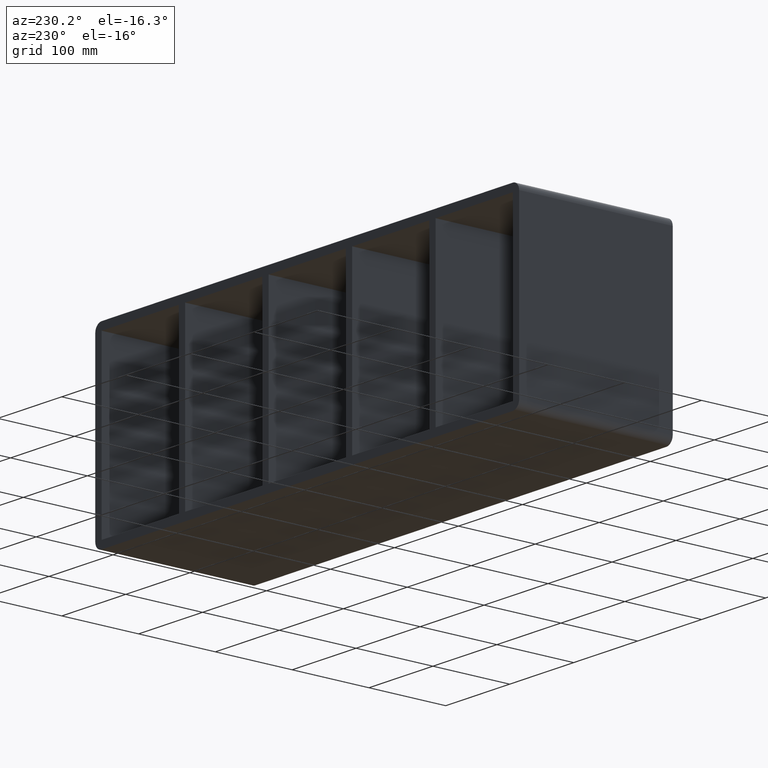
[diagram: clean part render]
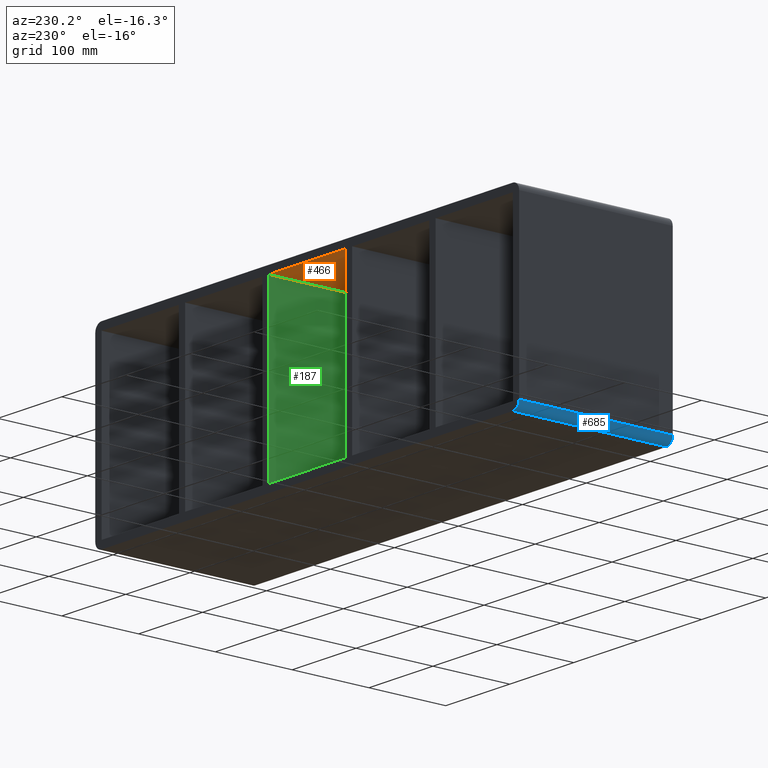
[diagram: same view with three faces highlighted in distinct colors, each labeled with its STEP entity id]
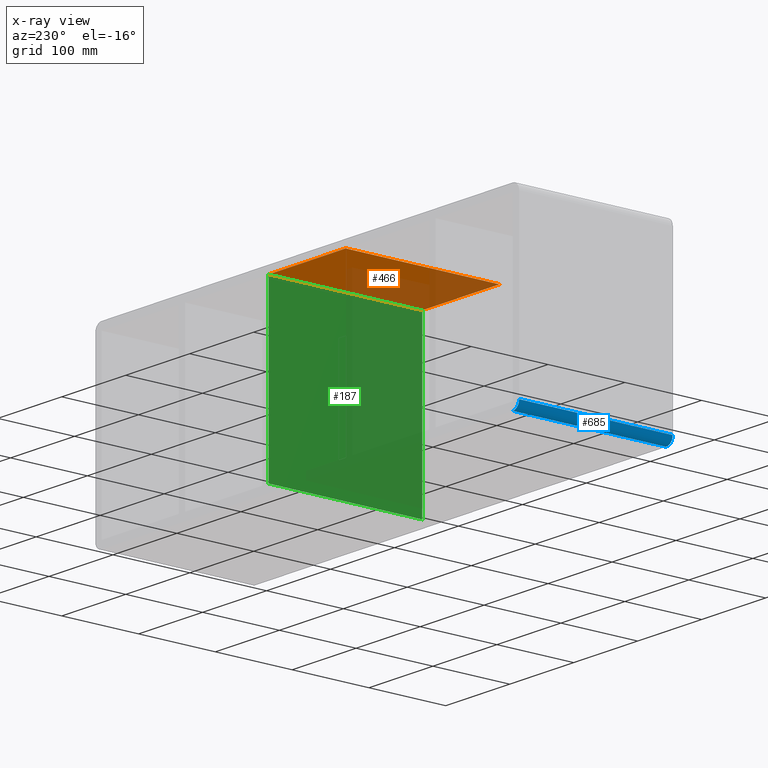
[diagram: x-ray of the same camera — body ghosted, the three highlighted faces saturated]
A machine part, auxiliary view with three faces highlighted in distinct colors.
The next image is the same camera in x-ray (body ghosted, the three faces saturated) — at least one of them is partly hidden behind the body in this view.
Their STEP definitions:

[orange] entity #466 — the highlighted planar face has unit normal (0, 0, 1).
#155=CARTESIAN_POINT('',(60.249999999998742,-3.0,109.00000000000004));
#156=VERTEX_POINT('',#155);
#163=CARTESIAN_POINT('',(60.249999999998742,197.0,109.00000000000004));
#164=VERTEX_POINT('',#163);
#165=CARTESIAN_POINT('',(60.249999999998764,196.99999999999997,109.00000000000003));
#166=DIRECTION('',(0.0,-1.0,0.0));
#167=VECTOR('',#166,199.99999999999997);
#168=LINE('',#165,#167);
#169=EDGE_CURVE('',#164,#156,#168,.T.);
#273=CARTESIAN_POINT('',(-60.250000000007269,-3.0,109.00000000000004));
#274=VERTEX_POINT('',#273);
#291=CARTESIAN_POINT('',(-60.250000000007269,197.0,109.00000000000004));
#292=VERTEX_POINT('',#291);
#299=CARTESIAN_POINT('',(-60.25000000000729,-3.0,109.00000000000003));
#300=DIRECTION('',(0.0,1.0,0.0));
#301=VECTOR('',#300,199.99999999999997);
#302=LINE('',#299,#301);
#303=EDGE_CURVE('',#274,#292,#302,.T.);
#445=CARTESIAN_POINT('',(-321.25,0.0,109.00000000000003));
#446=DIRECTION('',(0.0,0.0,1.0));
#447=DIRECTION('',(1.0,0.0,0.0));
#448=AXIS2_PLACEMENT_3D('',#445,#446,#447);
#449=PLANE('',#448);
#450=ORIENTED_EDGE('',*,*,#169,.T.);
#451=CARTESIAN_POINT('',(-60.250000000007276,-3.0,109.00000000000003));
#452=DIRECTION('',(1.0,0.0,0.0));
#453=VECTOR('',#452,120.50000000000603);
#454=LINE('',#451,#453);
#455=EDGE_CURVE('',#274,#156,#454,.T.);
#456=ORIENTED_EDGE('',*,*,#455,.F.);
#457=ORIENTED_EDGE('',*,*,#303,.T.);
#458=CARTESIAN_POINT('',(60.249999999998749,197.0,109.00000000000003));
#459=DIRECTION('',(-1.0,0.0,0.0));
#460=VECTOR('',#459,120.50000000000603);
#461=LINE('',#458,#460);
#462=EDGE_CURVE('',#164,#292,#461,.T.);
#463=ORIENTED_EDGE('',*,*,#462,.F.);
#464=EDGE_LOOP('',(#450,#456,#457,#463));
#465=FACE_OUTER_BOUND('',#464,.T.);
#466=ADVANCED_FACE('',(#465),#449,.F.);

[blue] entity #685 — the highlighted cylindrical surface (edge-blend (fillet) strip) has radius 10 mm, axis along (0, 1, 0).
#644=CARTESIAN_POINT('',(-321.25,0.0,-108.99999999999999));
#645=DIRECTION('',(0.0,1.0,0.0));
#646=DIRECTION('',(-0.707106781186547,0.0,-0.707106781186547));
#647=AXIS2_PLACEMENT_3D('',#644,#645,#646);
#648=CYLINDRICAL_SURFACE('',#647,10.0);
#649=CARTESIAN_POINT('',(-331.25,197.0,-108.99999999999999));
#650=VERTEX_POINT('',#649);
#651=CARTESIAN_POINT('',(-321.25,197.0,-118.99999999999999));
#652=VERTEX_POINT('',#651);
#653=CARTESIAN_POINT('',(-321.25,197.0,-108.99999999999999));
#654=DIRECTION('',(0.0,-1.0,0.0));
#655=DIRECTION('',(-0.707106781186547,0.0,-0.707106781186547));
#656=AXIS2_PLACEMENT_3D('',#653,#654,#655);
#657=CIRCLE('',#656,9.999999999999998);
#658=EDGE_CURVE('',#650,#652,#657,.T.);
#659=ORIENTED_EDGE('',*,*,#658,.T.);
#660=CARTESIAN_POINT('',(-321.25,-3.0,-118.99999999999999));
#661=VERTEX_POINT('',#660);
#662=CARTESIAN_POINT('',(-321.25,197.0,-118.99999999999999));
#663=DIRECTION('',(0.0,-1.0,0.0));
#664=VECTOR('',#663,200.0);
#665=LINE('',#662,#664);
#666=EDGE_CURVE('',#652,#661,#665,.T.);
#667=ORIENTED_EDGE('',*,*,#666,.T.);
#668=CARTESIAN_POINT('',(-331.25,-3.0,-108.99999999999999));
#669=VERTEX_POINT('',#668);
#670=CARTESIAN_POINT('',(-321.25,-3.0,-108.99999999999999));
#671=DIRECTION('',(0.0,1.0,0.0));
#672=DIRECTION('',(-0.707106781186547,0.0,-0.707106781186547));
#673=AXIS2_PLACEMENT_3D('',#670,#671,#672);
#674=CIRCLE('',#673,9.999999999999998);
#675=EDGE_CURVE('',#661,#669,#674,.T.);
#676=ORIENTED_EDGE('',*,*,#675,.T.);
#677=CARTESIAN_POINT('',(-331.25,-3.0,-108.99999999999999));
#678=DIRECTION('',(0.0,1.0,0.0));
#679=VECTOR('',#678,200.0);
#680=LINE('',#677,#679);
#681=EDGE_CURVE('',#669,#650,#680,.T.);
#682=ORIENTED_EDGE('',*,*,#681,.T.);
#683=EDGE_LOOP('',(#659,#667,#676,#682));
#684=FACE_OUTER_BOUND('',#683,.T.);
#685=ADVANCED_FACE('',(#684),#648,.T.);

[green] entity #187 — the highlighted planar face has unit normal (-1, 0, 0).
#148=CARTESIAN_POINT('',(60.249999999998778,-3.0,-109.0));
#149=DIRECTION('',(-1.0,0.0,0.0));
#150=DIRECTION('',(0.0,0.0,1.0));
#151=AXIS2_PLACEMENT_3D('',#148,#149,#150);
#152=PLANE('',#151);
#153=CARTESIAN_POINT('',(60.249999999998778,-3.0,-109.0));
#154=VERTEX_POINT('',#153);
#155=CARTESIAN_POINT('',(60.249999999998742,-3.0,109.00000000000004));
#156=VERTEX_POINT('',#155);
#157=CARTESIAN_POINT('',(60.249999999998778,-3.0,-109.0));
#158=DIRECTION('',(0.0,0.0,1.0));
#159=VECTOR('',#158,218.00000000000006);
#160=LINE('',#157,#159);
#161=EDGE_CURVE('',#154,#156,#160,.T.);
#162=ORIENTED_EDGE('',*,*,#161,.T.);
#163=CARTESIAN_POINT('',(60.249999999998742,197.0,109.00000000000004));
#164=VERTEX_POINT('',#163);
#165=CARTESIAN_POINT('',(60.249999999998764,196.99999999999997,109.00000000000003));
#166=DIRECTION('',(0.0,-1.0,0.0));
#167=VECTOR('',#166,199.99999999999997);
#168=LINE('',#165,#167);
#169=EDGE_CURVE('',#164,#156,#168,.T.);
#170=ORIENTED_EDGE('',*,*,#169,.F.);
#171=CARTESIAN_POINT('',(60.249999999998778,197.0,-109.0));
#172=VERTEX_POINT('',#171);
#173=CARTESIAN_POINT('',(60.249999999998778,197.0,-109.0));
#174=DIRECTION('',(0.0,0.0,1.0));
#175=VECTOR('',#174,218.00000000000006);
#176=LINE('',#173,#175);
#177=EDGE_CURVE('',#172,#164,#176,.T.);
#178=ORIENTED_EDGE('',*,*,#177,.F.);
#179=CARTESIAN_POINT('',(60.249999999998778,-3.0,-109.0));
#180=DIRECTION('',(0.0,1.0,0.0));
#181=VECTOR('',#180,199.99999999999997);
#182=LINE('',#179,#181);
#183=EDGE_CURVE('',#154,#172,#182,.T.);
#184=ORIENTED_EDGE('',*,*,#183,.F.);
#185=EDGE_LOOP('',(#162,#170,#178,#184));
#186=FACE_OUTER_BOUND('',#185,.T.);
#187=ADVANCED_FACE('',(#186),#152,.T.);